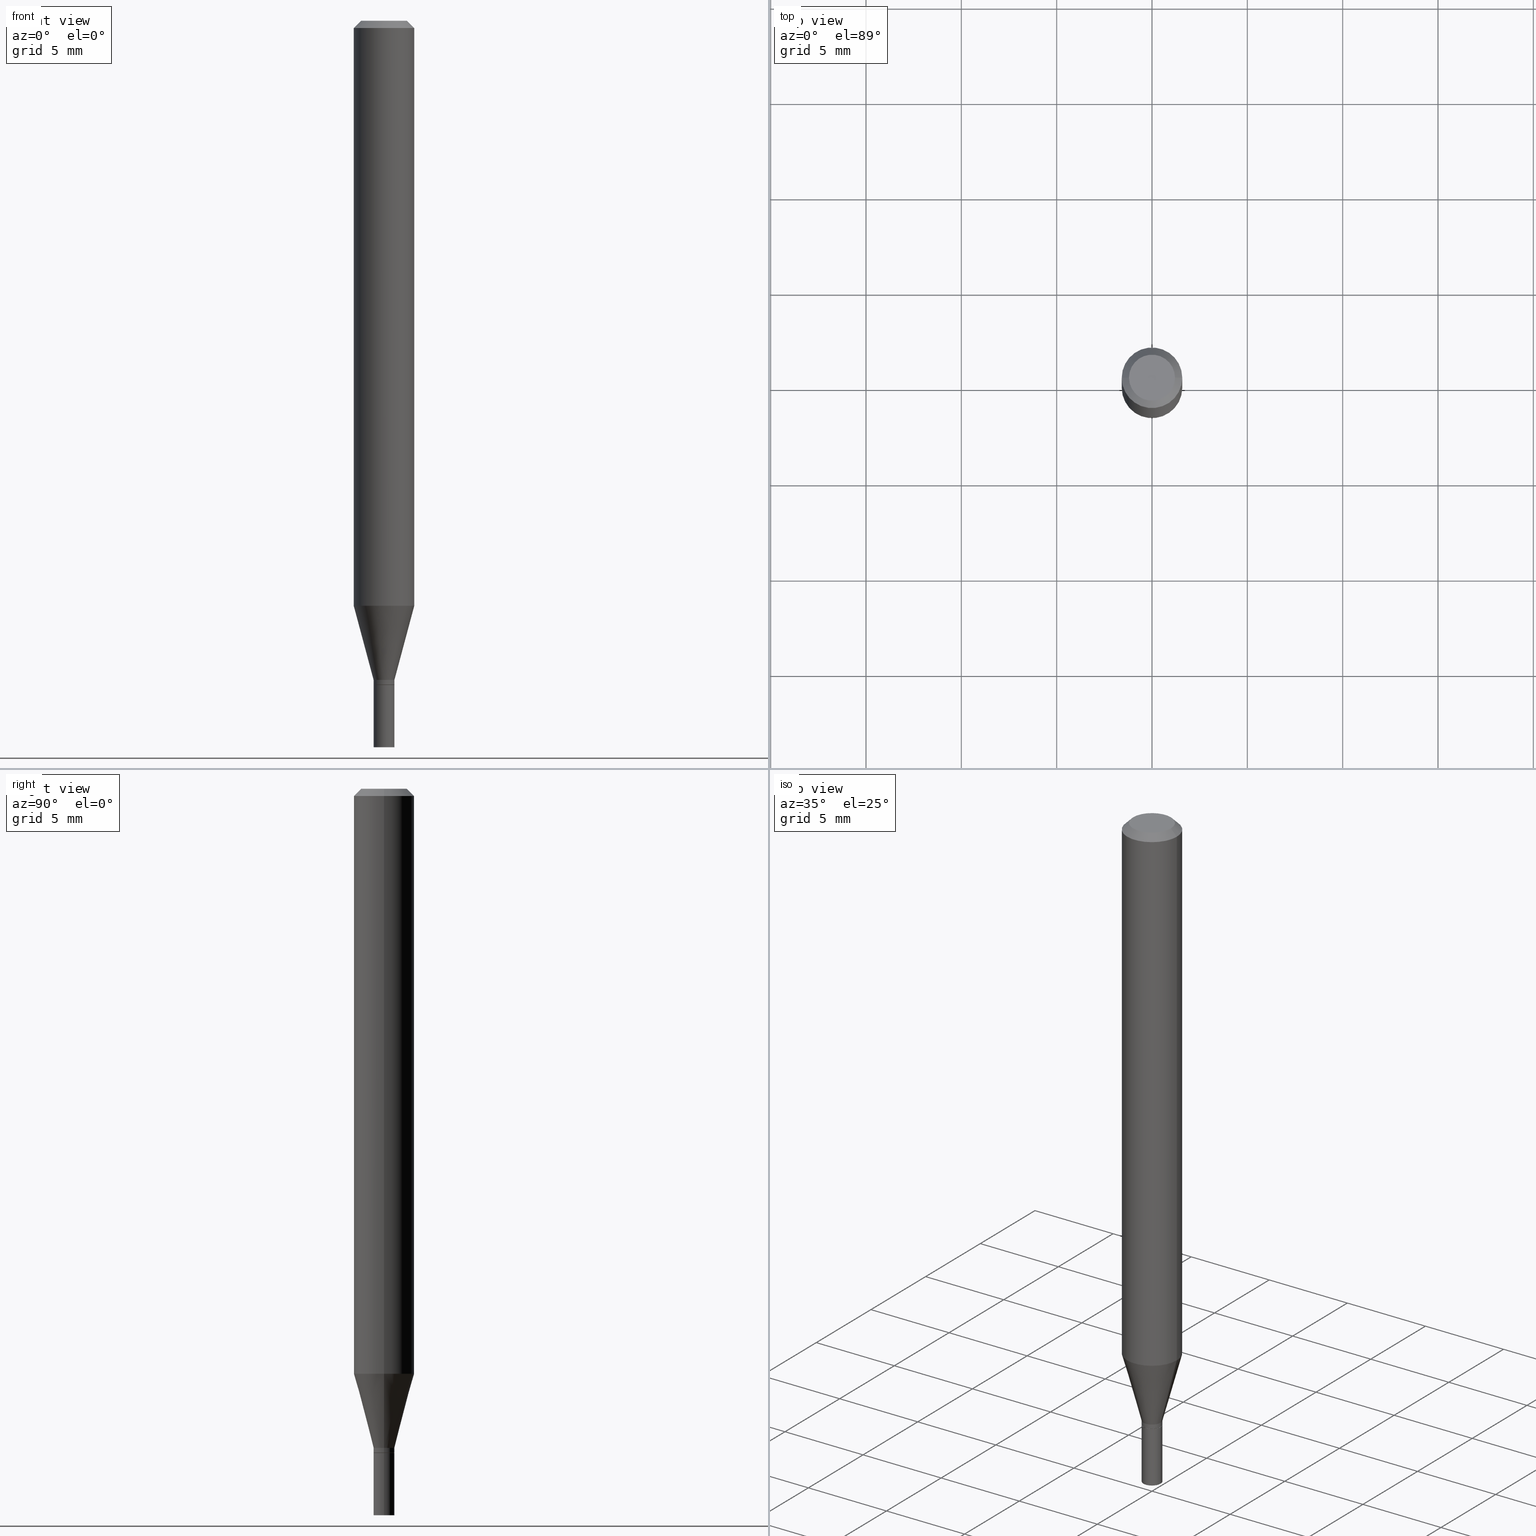
[diagram: canonical four-view strip — front | top / right | iso, engineering-drawing reading convention]
A machine part, canonical four-view strip (front | top / right | iso — engineering-drawing reading convention). The complete STEP part file that produces these views, byte-faithful:
ISO-10303-21;
HEADER;
FILE_DESCRIPTION (( 'STEP AP203' ),
    '1' );
FILE_NAME ('00481.STEP',
    '2024-03-19T21:19:58',
    ( '' ),
    ( '' ),
    'SwSTEP 2.0',
    'SolidWorks 2023',
    '' );
FILE_SCHEMA (( 'CONFIG_CONTROL_DESIGN' ));
ENDSEC;

DATA;
#1 = ORIENTED_EDGE ( 'NONE', *, *, #17, .F. ) ;
#2 = ORIENTED_EDGE ( 'NONE', *, *, #311, .F. ) ;
#3 = FACE_OUTER_BOUND ( 'NONE', #194, .T. ) ;
#4 = AXIS2_PLACEMENT_3D ( 'NONE', #453, #319, #150 ) ;
#5 = APPROVAL_PERSON_ORGANIZATION ( #126, #353, #408 ) ;
#6 = COORDINATED_UNIVERSAL_TIME_OFFSET ( 5, 0, .BEHIND. ) ;
#7 = EDGE_LOOP ( 'NONE', ( #34, #1, #221, #158 ) ) ;
#8 = PRODUCT_DEFINITION ( 'UNKNOWN', '', #239, #179 ) ;
#9 = PLANE ( 'NONE',  #419 ) ;
#10 = ORIENTED_EDGE ( 'NONE', *, *, #109, .T. ) ;
#11 = CARTESIAN_POINT ( 'NONE',  ( 2.954091878064654281E-29, -4.217660286405631739E-15, -1.207985916889676270 ) ) ;
#12 = APPROVAL_STATUS ( 'not_yet_approved' ) ;
#13 = AXIS2_PLACEMENT_3D ( 'NONE', #462, #424, #144 ) ;
#14 = VERTEX_POINT ( 'NONE', #312 ) ;
#15 = FACE_OUTER_BOUND ( 'NONE', #334, .T. ) ;
#16 = DIRECTION ( 'NONE',  ( -0.7071067811865522357, 2.468850131082306364E-15, -0.7071067811865427988 ) ) ;
#17 = EDGE_CURVE ( 'NONE', #92, #156, #153, .T. ) ;
#18 = DIRECTION ( 'NONE',  ( -2.445468806185136597E-29, 3.491481338843145583E-15, 1.000000000000000000 ) ) ;
#19 = DIRECTION ( 'NONE',  ( -0.7071067811865656694, 7.493145998870420424E-15, 0.7071067811865294761 ) ) ;
#20 = LINE ( 'NONE', #168, #44 ) ;
#21 = LINE ( 'NONE', #295, #141 ) ;
#22 = CC_DESIGN_APPROVAL ( #401, ( #246 ) ) ;
#23 = CARTESIAN_POINT ( 'NONE',  ( 0.06249999999999999306, -4.654095453761023408E-15, -1.207985916889676270 ) ) ;
#24 = APPROVAL_STATUS ( 'not_yet_approved' ) ;
#25 = FACE_OUTER_BOUND ( 'NONE', #123, .T. ) ;
#26 = ADVANCED_FACE ( 'NONE', ( #240 ), #99, .T. ) ;
#27 = VECTOR ( 'NONE', #318, 39.37007874015748143 ) ;
#28 = VECTOR ( 'NONE', #306, 39.37007874015748143 ) ;
#29 = CARTESIAN_POINT ( 'NONE',  ( 0.02150000000000000175, -5.387355705834973006E-15, -1.500000000000000222 ) ) ;
#30 = ORIENTED_EDGE ( 'NONE', *, *, #191, .F. ) ;
#31 = MECHANICAL_CONTEXT ( 'NONE', #105, 'mechanical' ) ;
#32 = DIRECTION ( 'NONE',  ( -1.000000000000000000, 6.982962677686266711E-15, 0.000000000000000000 ) ) ;
#33 = ORIENTED_EDGE ( 'NONE', *, *, #46, .T. ) ;
#34 = ORIENTED_EDGE ( 'NONE', *, *, #303, .F. ) ;
#35 = CALENDAR_DATE ( 2024, 19, 3 ) ;
#36 = AXIS2_PLACEMENT_3D ( 'NONE', #299, #444, #130 ) ;
#37 = CARTESIAN_POINT ( 'NONE',  ( 3.668203209277705088E-31, -5.237222008264718399E-17, -0.01499999999999999944 ) ) ;
#38 = DIRECTION ( 'NONE',  ( -2.445468806185136597E-29, 3.491481338843145583E-15, 1.000000000000000000 ) ) ;
#39 = DIRECTION ( 'NONE',  ( 1.000000000000000000, -6.982962677686265922E-15, 4.876176775795935793E-29 ) ) ;
#40 = EDGE_LOOP ( 'NONE', ( #430, #10, #53, #263 ) ) ;
#41 = DIRECTION ( 'NONE',  ( 2.445468806185136597E-29, -3.491481338843145583E-15, -1.000000000000000000 ) ) ;
#42 = ORIENTED_EDGE ( 'NONE', *, *, #187, .T. ) ;
#43 = EDGE_CURVE ( 'NONE', #449, #234, #434, .T. ) ;
#44 = VECTOR ( 'NONE', #19, 39.37007874015748143 ) ;
#45 = LOCAL_TIME ( 17, 19, 58.00000000000000000, #356 ) ;
#46 = EDGE_CURVE ( 'NONE', #75, #450, #421, .T. ) ;
#47 = FACE_OUTER_BOUND ( 'NONE', #119, .T. ) ;
#48 = CARTESIAN_POINT ( 'NONE',  ( 3.576687321579069994E-29, -5.368277968210015545E-15, -1.500000000000000222 ) ) ;
#49 = VERTEX_POINT ( 'NONE', #427 ) ;
#50 = LINE ( 'NONE', #242, #28 ) ;
#51 = VECTOR ( 'NONE', #386, 39.37007874015748143 ) ;
#52 = APPROVAL_PERSON_ORGANIZATION ( #352, #329, #57 ) ;
#53 = ORIENTED_EDGE ( 'NONE', *, *, #350, .T. ) ;
#54 = DIRECTION ( 'NONE',  ( -1.000000000000000000, 6.982962677686265922E-15, -4.876176775795935793E-29 ) ) ;
#55 = MANIFOLD_SOLID_BREP ( 'Body-Move/Copy2[1]', #231 ) ;
#56 = DIRECTION ( 'NONE',  ( -2.445468806185136597E-29, 3.491481338843145583E-15, 1.000000000000000000 ) ) ;
#57 = APPROVAL_ROLE ( '' ) ;
#58 = LINE ( 'NONE', #182, #27 ) ;
#59 = AXIS2_PLACEMENT_3D ( 'NONE', #364, #38, #325 ) ;
#60 = CARTESIAN_POINT ( 'NONE',  ( 0.06250000000000000000, -4.811533449433679005E-16, -0.01499999999999999944 ) ) ;
#61 =( CONVERSION_BASED_UNIT ( 'INCH', #388 ) LENGTH_UNIT ( ) NAMED_UNIT ( #307 ) );
#62 = DIRECTION ( 'NONE',  ( 1.000000000000000000, -6.982962677686287221E-15, 0.000000000000000000 ) ) ;
#63 = FACE_OUTER_BOUND ( 'NONE', #248, .T. ) ;
#64 = DIRECTION ( 'NONE',  ( -2.445468806185136597E-29, 3.491481338843145583E-15, 1.000000000000000000 ) ) ;
#65 = ORIENTED_EDGE ( 'NONE', *, *, #46, .F. ) ;
#66 = AXIS2_PLACEMENT_3D ( 'NONE', #278, #250, #417 ) ;
#67 = ORIENTED_EDGE ( 'NONE', *, *, #104, .T. ) ;
#68 = APPROVAL_ROLE ( '' ) ;
#69 = ADVANCED_FACE ( 'NONE', ( #422 ), #351, .T. ) ;
#70 = ORIENTED_EDGE ( 'NONE', *, *, #354, .T. ) ;
#71 = AXIS2_PLACEMENT_3D ( 'NONE', #431, #64, #102 ) ;
#72 = CYLINDRICAL_SURFACE ( 'NONE', #59, 0.06250000000000000000 ) ;
#73 = ORGANIZATION ( 'UNSPECIFIED', 'UNSPECIFIED', '' ) ;
#74 = VERTEX_POINT ( 'NONE', #355 ) ;
#75 = VERTEX_POINT ( 'NONE', #29 ) ;
#76 = DIRECTION ( 'NONE',  ( -2.445468806185136597E-29, 3.491481338843145583E-15, 1.000000000000000000 ) ) ;
#77 = ADVANCED_FACE ( 'NONE', ( #180 ), #164, .T. ) ;
#78 = ADVANCED_FACE ( 'NONE', ( #25 ), #243, .T. ) ;
#79 = CARTESIAN_POINT ( 'NONE',  ( 3.352737733279822651E-29, -4.786820915553953690E-15, -1.371000000000000218 ) ) ;
#80 = AXIS2_PLACEMENT_3D ( 'NONE', #317, #411, #127 ) ;
#81 = LOCAL_TIME ( 17, 19, 58.00000000000000000, #403 ) ;
#82 = FACE_OUTER_BOUND ( 'NONE', #136, .T. ) ;
#83 = VERTEX_POINT ( 'NONE', #147 ) ;
#84 = CALENDAR_DATE ( 2024, 19, 3 ) ;
#85 = DIRECTION ( 'NONE',  ( -2.445468806185136597E-29, 3.491481338843145583E-15, 1.000000000000000000 ) ) ;
#86 = CARTESIAN_POINT ( 'NONE',  ( 3.351514998876730410E-29, -4.785075174884532186E-15, -1.370500000000000274 ) ) ;
#87 = DIRECTION ( 'NONE',  ( 2.438088387897960049E-29, -3.491481338843145188E-15, -1.000000000000000000 ) ) ;
#88 = CARTESIAN_POINT ( 'NONE',  ( 0.02099999999999999784, -4.933463131785365512E-15, -1.371000000000000218 ) ) ;
#89 = APPROVAL_PERSON_ORGANIZATION ( #305, #401, #68 ) ;
#90 = DIRECTION ( 'NONE',  ( 1.000000000000000000, -6.982962677686287221E-15, 0.000000000000000000 ) ) ;
#91 = DIRECTION ( 'NONE',  ( 1.000000000000000000, -6.982962677686265922E-15, 4.876176775795935793E-29 ) ) ;
#92 = VERTEX_POINT ( 'NONE', #216 ) ;
#93 = EDGE_CURVE ( 'NONE', #83, #74, #404, .T. ) ;
#94 = ORIENTED_EDGE ( 'NONE', *, *, #155, .F. ) ;
#95 = DIRECTION ( 'NONE',  ( 1.000000000000000000, -6.982962677686267499E-15, 4.852736867747366768E-29 ) ) ;
#96 = AXIS2_PLACEMENT_3D ( 'NONE', #268, #132, #300 ) ;
#97 = ORIENTED_EDGE ( 'NONE', *, *, #322, .T. ) ;
#98 = VECTOR ( 'NONE', #100, 39.37007874015747433 ) ;
#99 = CYLINDRICAL_SURFACE ( 'NONE', #71, 0.02149999999999992889 ) ;
#100 = DIRECTION ( 'NONE',  ( -0.2588190451025214611, 5.211531920934551042E-15, 0.9659258262890682012 ) ) ;
#101 = ORIENTED_EDGE ( 'NONE', *, *, #457, .T. ) ;
#102 = DIRECTION ( 'NONE',  ( 1.000000000000000000, -6.982962677686266711E-15, 4.876176775795934672E-29 ) ) ;
#103 =( NAMED_UNIT ( * ) SI_UNIT ( $, .STERADIAN. ) SOLID_ANGLE_UNIT ( ) );
#104 = EDGE_CURVE ( 'NONE', #282, #49, #370, .T. ) ;
#105 = APPLICATION_CONTEXT ( 'configuration controlled 3d designs of mechanical parts and assemblies' ) ;
#106 = AXIS2_PLACEMENT_3D ( 'NONE', #342, #18, #62 ) ;
#107 = DATE_AND_TIME ( #181, #45 ) ;
#108 = ORIENTED_EDGE ( 'NONE', *, *, #229, .F. ) ;
#109 = EDGE_CURVE ( 'NONE', #275, #323, #338, .T. ) ;
#110 = DATE_AND_TIME ( #35, #357 ) ;
#111 = AXIS2_PLACEMENT_3D ( 'NONE', #452, #244, #210 ) ;
#112 = DIRECTION ( 'NONE',  ( 1.000000000000000000, -6.982962677686262766E-15, 0.000000000000000000 ) ) ;
#113 = ADVANCED_FACE ( 'NONE', ( #15 ), #128, .T. ) ;
#114 = PLANE ( 'NONE',  #426 ) ;
#115 = ADVANCED_FACE ( 'NONE', ( #135 ), #133, .T. ) ;
#116 = CARTESIAN_POINT ( 'NONE',  ( 3.668203209277704895E-29, -5.237222008264718177E-15, -1.500000000000000222 ) ) ;
#117 = EDGE_LOOP ( 'NONE', ( #413, #369, #373, #186 ) ) ;
#118 = DIRECTION ( 'NONE',  ( -2.438088387897960049E-29, 3.491481338843145188E-15, 1.000000000000000000 ) ) ;
#119 = EDGE_LOOP ( 'NONE', ( #291, #415 ) ) ;
#120 = ORIENTED_EDGE ( 'NONE', *, *, #187, .F. ) ;
#121 = CIRCLE ( 'NONE', #36, 0.02150000000000000175 ) ;
#122 = PLANE ( 'NONE',  #451 ) ;
#123 = EDGE_LOOP ( 'NONE', ( #160, #398, #30, #120 ) ) ;
#124 = DIRECTION ( 'NONE',  ( 1.000000000000000000, -6.982962677686265922E-15, 4.876176775795935232E-29 ) ) ;
#125 = PERSON ( 'UNSPECIFIED', 'UNSPECIFIED', 'UNSPECIFIED', ('UNSPECIFIED'), ('UNSPECIFIED'), ('UNSPECIFIED') ) ;
#126 = PERSON_AND_ORGANIZATION ( #125, #73 ) ;
#127 = DIRECTION ( 'NONE',  ( -1.000000000000000000, 6.982962677686266711E-15, 0.000000000000000000 ) ) ;
#128 = CYLINDRICAL_SURFACE ( 'NONE', #301, 0.02150000000000000175 ) ;
#129 = CARTESIAN_POINT ( 'NONE',  ( 1.501336975702882323E-16, 0.02149999999999521391, -1.371000000000000218 ) ) ;
#130 = DIRECTION ( 'NONE',  ( 1.000000000000000000, -6.982962677686265133E-15, 0.000000000000000000 ) ) ;
#131 = ADVANCED_FACE ( 'NONE', ( #47 ), #122, .F. ) ;
#132 = DIRECTION ( 'NONE',  ( -2.445468806185136597E-29, 3.491481338843145583E-15, 1.000000000000000000 ) ) ;
#133 = CONICAL_SURFACE ( 'NONE', #260, 0.02099999999999999784, 0.7853981633974739252 ) ;
#134 = AXIS2_PLACEMENT_3D ( 'NONE', #79, #292, #436 ) ;
#135 = FACE_OUTER_BOUND ( 'NONE', #416, .T. ) ;
#136 = EDGE_LOOP ( 'NONE', ( #264, #360 ) ) ;
#137 =( LENGTH_UNIT ( ) NAMED_UNIT ( * ) SI_UNIT ( $, .METRE. ) );
#138 = CC_DESIGN_PERSON_AND_ORGANIZATION_ASSIGNMENT ( #359, #184, ( #246 ) ) ;
#139 = PERSON_AND_ORGANIZATION_ROLE ( 'design_owner' ) ;
#140 = DIRECTION ( 'NONE',  ( 0.2588190451025214611, 1.565188264969621573E-15, 0.9659258262890682012 ) ) ;
#141 = VECTOR ( 'NONE', #140, 39.37007874015747433 ) ;
#142 = CIRCLE ( 'NONE', #396, 0.02150000000000000175 ) ;
#143 = CC_DESIGN_DATE_AND_TIME_ASSIGNMENT ( #199, #337, ( #8 ) ) ;
#144 = DIRECTION ( 'NONE',  ( 1.000000000000000000, -6.982962677686287221E-15, 0.000000000000000000 ) ) ;
#145 =( NAMED_UNIT ( * ) PLANE_ANGLE_UNIT ( ) SI_UNIT ( $, .RADIAN. ) );
#146 = LINE ( 'NONE', #219, #435 ) ;
#147 = CARTESIAN_POINT ( 'NONE',  ( -0.06250000000000000000, -1.690927043394076990E-15, -0.01499999999999999944 ) ) ;
#148 = DIRECTION ( 'NONE',  ( 1.000000000000000000, -6.982962677686267499E-15, 4.852736867747366768E-29 ) ) ;
#149 = DIRECTION ( 'NONE',  ( -2.445468806185136597E-29, 3.491481338843145583E-15, 1.000000000000000000 ) ) ;
#150 = DIRECTION ( 'NONE',  ( 1.000000000000000000, -6.982962677686266711E-15, 4.876176775795934672E-29 ) ) ;
#151 = DIRECTION ( 'NONE',  ( -2.445468806185136877E-29, 3.491481338843145188E-15, 1.000000000000000000 ) ) ;
#152 = ORIENTED_EDGE ( 'NONE', *, *, #200, .F. ) ;
#153 = CIRCLE ( 'NONE', #279, 0.04749999999999999362 ) ;
#154 = ORIENTED_EDGE ( 'NONE', *, *, #380, .F. ) ;
#155 = EDGE_CURVE ( 'NONE', #14, #217, #321, .T. ) ;
#156 = VERTEX_POINT ( 'NONE', #379 ) ;
#157 = EDGE_LOOP ( 'NONE', ( #285, #192 ) ) ;
#158 = ORIENTED_EDGE ( 'NONE', *, *, #93, .T. ) ;
#159 = CIRCLE ( 'NONE', #448, 0.06250000000000000000 ) ;
#160 = ORIENTED_EDGE ( 'NONE', *, *, #155, .T. ) ;
#161 = CARTESIAN_POINT ( 'NONE',  ( -0.06249999999999999306, -3.773571076555568334E-15, -1.207985916889676270 ) ) ;
#162 = APPROVAL_STATUS ( 'not_yet_approved' ) ;
#163 = ORIENTED_EDGE ( 'NONE', *, *, #350, .F. ) ;
#164 = CONICAL_SURFACE ( 'NONE', #80, 0.06250000000000000000, 0.7853981633974549403 ) ;
#165 = VECTOR ( 'NONE', #207, 39.37007874015748143 ) ;
#166 = EDGE_CURVE ( 'NONE', #234, #449, #245, .T. ) ;
#167 = FACE_OUTER_BOUND ( 'NONE', #270, .T. ) ;
#168 = CARTESIAN_POINT ( 'NONE',  ( -0.02099999999999999784, -4.637606941044332518E-15, -1.371000000000000218 ) ) ;
#169 = ORIENTED_EDGE ( 'NONE', *, *, #290, .F. ) ;
#170 = FACE_OUTER_BOUND ( 'NONE', #223, .T. ) ;
#171 = VECTOR ( 'NONE', #409, 39.37007874015748143 ) ;
#172 = ADVANCED_FACE ( 'NONE', ( #63 ), #374, .T. ) ;
#173 = DIRECTION ( 'NONE',  ( 1.000000000000000000, -6.982962677686287221E-15, 0.000000000000000000 ) ) ;
#174 = LINE ( 'NONE', #381, #165 ) ;
#175 = UNCERTAINTY_MEASURE_WITH_UNIT (LENGTH_MEASURE( 1.000000000000000082E-05 ), #61, 'distance_accuracy_value', 'NONE');
#176 = EDGE_CURVE ( 'NONE', #275, #83, #58, .T. ) ;
#177 = APPROVAL_DATE_TIME ( #308, #353 ) ;
#178 = CIRCLE ( 'NONE', #446, 0.02149999999999992195 ) ;
#179 = DESIGN_CONTEXT ( 'detailed design', #432, 'design' ) ;
#180 = FACE_OUTER_BOUND ( 'NONE', #7, .T. ) ;
#181 = CALENDAR_DATE ( 2024, 19, 3 ) ;
#182 = CARTESIAN_POINT ( 'NONE',  ( -0.06250000000000000000, 4.440892098500626162E-16, -3.074334431409316114E-30 ) ) ;
#183 = ADVANCED_FACE ( 'NONE', ( #255 ), #238, .T. ) ;
#184 = PERSON_AND_ORGANIZATION_ROLE ( 'classification_officer' ) ;
#185 = LINE ( 'NONE', #320, #204 ) ;
#186 = ORIENTED_EDGE ( 'NONE', *, *, #214, .F. ) ;
#187 = EDGE_CURVE ( 'NONE', #14, #49, #185, .T. ) ;
#188 = EDGE_CURVE ( 'NONE', #217, #14, #178, .T. ) ;
#189 = CLOSED_SHELL ( 'NONE', ( #78, #347, #183, #362, #215, #172, #69, #77, #131, #232, #115, #26 ) ) ;
#190 = LOCAL_TIME ( 17, 19, 58.00000000000000000, #230 ) ;
#191 = EDGE_CURVE ( 'NONE', #49, #282, #284, .T. ) ;
#192 = ORIENTED_EDGE ( 'NONE', *, *, #43, .F. ) ;
#193 = CARTESIAN_POINT ( 'NONE',  ( -0.02150000000000000175, -4.859254773720913469E-15, -1.500000000000000222 ) ) ;
#194 = EDGE_LOOP ( 'NONE', ( #385, #294, #33, #455 ) ) ;
#195 = AXIS2_PLACEMENT_3D ( 'NONE', #37, #41, #32 ) ;
#196 = AXIS2_PLACEMENT_3D ( 'NONE', #237, #384, #335 ) ;
#197 = CALENDAR_DATE ( 2024, 19, 3 ) ;
#198 = DIRECTION ( 'NONE',  ( -2.438088387897960049E-29, 3.491481338843145188E-15, 1.000000000000000000 ) ) ;
#199 = DATE_AND_TIME ( #84, #212 ) ;
#200 = EDGE_CURVE ( 'NONE', #449, #217, #20, .T. ) ;
#201 = FACE_OUTER_BOUND ( 'NONE', #328, .T. ) ;
#202 = EDGE_CURVE ( 'NONE', #450, #365, #121, .T. ) ;
#203 = ORIENTED_EDGE ( 'NONE', *, *, #376, .F. ) ;
#204 = VECTOR ( 'NONE', #151, 39.37007874015748143 ) ;
#205 = CARTESIAN_POINT ( 'NONE',  ( 0.02150000000000000175, -1.501336975702547303E-16, 1.048378006796126202E-30 ) ) ;
#206 = DIRECTION ( 'NONE',  ( -2.445468806185136597E-29, 3.491481338843145583E-15, 1.000000000000000000 ) ) ;
#207 = DIRECTION ( 'NONE',  ( -2.445468806185136877E-29, 3.491481338843145188E-15, 1.000000000000000000 ) ) ;
#208 = EDGE_LOOP ( 'NONE', ( #213, #259, #154, #163 ) ) ;
#209 = DIRECTION ( 'NONE',  ( 0.000000000000000000, 0.000000000000000000, 1.000000000000000000 ) ) ;
#210 = DIRECTION ( 'NONE',  ( 1.000000000000000000, -6.982962677686266711E-15, 4.876176775795935793E-29 ) ) ;
#211 = MANIFOLD_SOLID_BREP ( 'Body-Move/Copy2[2]', #189 ) ;
#212 = LOCAL_TIME ( 17, 19, 58.00000000000000000, #6 ) ;
#213 = ORIENTED_EDGE ( 'NONE', *, *, #376, .T. ) ;
#214 = EDGE_CURVE ( 'NONE', #92, #83, #233, .T. ) ;
#215 = ADVANCED_FACE ( 'NONE', ( #170 ), #383, .T. ) ;
#216 = CARTESIAN_POINT ( 'NONE',  ( -0.04749999999999999362, 3.578768372314206562E-16, -1.989643822619551895E-16 ) ) ;
#217 = VERTEX_POINT ( 'NONE', #456 ) ;
#218 = AXIS2_PLACEMENT_3D ( 'NONE', #304, #390, #173 ) ;
#219 = CARTESIAN_POINT ( 'NONE',  ( 0.06250000000000000000, -4.364351673553916694E-16, 3.047610484872459871E-30 ) ) ;
#220 = CC_DESIGN_PERSON_AND_ORGANIZATION_ASSIGNMENT ( #241, #139, ( #277 ) ) ;
#221 = ORIENTED_EDGE ( 'NONE', *, *, #214, .T. ) ;
#222 = CARTESIAN_POINT ( 'NONE',  ( -0.02150000000000000175, -4.859254773720913469E-15, -1.371000000000000218 ) ) ;
#223 = EDGE_LOOP ( 'NONE', ( #366, #101, #203, #169 ) ) ;
#224 = DIRECTION ( 'NONE',  ( 1.000000000000000000, -6.982962677686265133E-15, 0.000000000000000000 ) ) ;
#225 = VECTOR ( 'NONE', #267, 39.37007874015748143 ) ;
#226 = CC_DESIGN_APPROVAL ( #329, ( #8 ) ) ;
#227 = FACE_OUTER_BOUND ( 'NONE', #157, .T. ) ;
#228 = LINE ( 'NONE', #88, #171 ) ;
#229 = EDGE_CURVE ( 'NONE', #234, #14, #228, .T. ) ;
#230 = COORDINATED_UNIVERSAL_TIME_OFFSET ( 5, 0, .BEHIND. ) ;
#231 = CLOSED_SHELL ( 'NONE', ( #113, #288, #389, #330 ) ) ;
#232 = ADVANCED_FACE ( 'NONE', ( #227 ), #114, .F. ) ;
#233 = LINE ( 'NONE', #378, #399 ) ;
#234 = VERTEX_POINT ( 'NONE', #336 ) ;
#235 = LINE ( 'NONE', #60, #225 ) ;
#236 = ORIENTED_EDGE ( 'NONE', *, *, #200, .T. ) ;
#237 = CARTESIAN_POINT ( 'NONE',  ( 3.328283045217970545E-29, -4.751906102165520463E-15, -1.360999999999999988 ) ) ;
#238 = CONICAL_SURFACE ( 'NONE', #195, 0.06250000000000000000, 0.7853981633974549403 ) ;
#239 = PRODUCT_DEFINITION_FORMATION_WITH_SPECIFIED_SOURCE ( 'ANY', '', #277, .NOT_KNOWN. ) ;
#240 = FACE_OUTER_BOUND ( 'NONE', #281, .T. ) ;
#241 = PERSON_AND_ORGANIZATION ( #125, #73 ) ;
#242 = CARTESIAN_POINT ( 'NONE',  ( -0.02150000000000000175, 1.527666881884215524E-16, -1.057571044404804700E-30 ) ) ;
#243 = CYLINDRICAL_SURFACE ( 'NONE', #4, 0.02149999999999992889 ) ;
#244 = DIRECTION ( 'NONE',  ( -2.445468806185136597E-29, 3.491481338843145583E-15, 1.000000000000000000 ) ) ;
#245 = CIRCLE ( 'NONE', #218, 0.02099999999999999784 ) ;
#246 = SECURITY_CLASSIFICATION ( '', '', #428 ) ;
#247 = APPLICATION_PROTOCOL_DEFINITION ( 'international standard', 'config_control_design', 1994, #105 ) ;
#248 = EDGE_LOOP ( 'NONE', ( #326, #67, #272, #461 ) ) ;
#249 = FACE_OUTER_BOUND ( 'NONE', #208, .T. ) ;
#250 = DIRECTION ( 'NONE',  ( -2.445468806185136597E-29, 3.491481338843145583E-15, 1.000000000000000000 ) ) ;
#251 = EDGE_CURVE ( 'NONE', #75, #382, #293, .T. ) ;
#252 = AXIS2_PLACEMENT_3D ( 'NONE', #257, #405, #124 ) ;
#253 = DIRECTION ( 'NONE',  ( -2.445468806185136597E-29, 3.491481338843145583E-15, 1.000000000000000000 ) ) ;
#254 = CARTESIAN_POINT ( 'NONE',  ( 3.352737733279822651E-29, -4.786820915553953690E-15, -1.371000000000000218 ) ) ;
#255 = FACE_OUTER_BOUND ( 'NONE', #117, .T. ) ;
#256 = ORIENTED_EDGE ( 'NONE', *, *, #202, .T. ) ;
#257 = CARTESIAN_POINT ( 'NONE',  ( 0.000000000000000000, 0.000000000000000000, 0.000000000000000000 ) ) ;
#258 = CARTESIAN_POINT ( 'NONE',  ( 3.351514998876730410E-29, -4.785075174884532186E-15, -1.370500000000000274 ) ) ;
#259 = ORIENTED_EDGE ( 'NONE', *, *, #176, .T. ) ;
#260 = AXIS2_PLACEMENT_3D ( 'NONE', #269, #441, #90 ) ;
#261 = AXIS2_PLACEMENT_3D ( 'NONE', #418, #206, #95 ) ;
#262 = ORIENTED_EDGE ( 'NONE', *, *, #188, .T. ) ;
#263 = ORIENTED_EDGE ( 'NONE', *, *, #93, .F. ) ;
#264 = ORIENTED_EDGE ( 'NONE', *, *, #251, .F. ) ;
#265 = CC_DESIGN_PERSON_AND_ORGANIZATION_ASSIGNMENT ( #423, #458, ( #239 ) ) ;
#266 = PERSON_AND_ORGANIZATION ( #125, #73 ) ;
#267 = DIRECTION ( 'NONE',  ( 0.7071067811865522357, -7.319954787623271823E-15, -0.7071067811865427988 ) ) ;
#268 = CARTESIAN_POINT ( 'NONE',  ( 3.328283045217970545E-29, -4.751906102165520463E-15, -1.360999999999999988 ) ) ;
#269 = CARTESIAN_POINT ( 'NONE',  ( 3.352737733279822651E-29, -4.786820915553953690E-15, -1.371000000000000218 ) ) ;
#270 = EDGE_LOOP ( 'NONE', ( #256, #70 ) ) ;
#271 = CARTESIAN_POINT ( 'NONE',  ( -0.02149999999999992889, -4.599139413977099971E-15, -1.360999999999999988 ) ) ;
#272 = ORIENTED_EDGE ( 'NONE', *, *, #290, .T. ) ;
#273 = LINE ( 'NONE', #271, #98 ) ;
#274 = CIRCLE ( 'NONE', #400, 0.06250000000000000000 ) ;
#275 = VERTEX_POINT ( 'NONE', #161 ) ;
#276 = ORIENTED_EDGE ( 'NONE', *, *, #202, .F. ) ;
#277 = PRODUCT ( '00481', '00481', '', ( #31 ) ) ;
#278 = CARTESIAN_POINT ( 'NONE',  ( 3.668203209277705088E-31, -5.237222008264718399E-17, -0.01499999999999999944 ) ) ;
#279 = AXIS2_PLACEMENT_3D ( 'NONE', #392, #149, #148 ) ;
#280 = CIRCLE ( 'NONE', #134, 0.02150000000000000175 ) ;
#281 = EDGE_LOOP ( 'NONE', ( #2, #262, #42, #343 ) ) ;
#282 = VERTEX_POINT ( 'NONE', #372 ) ;
#283 = CARTESIAN_POINT ( 'NONE',  ( 2.954091878064654281E-29, -4.217660286405631739E-15, -1.207985916889676270 ) ) ;
#284 = CIRCLE ( 'NONE', #96, 0.02149999999999992889 ) ;
#285 = ORIENTED_EDGE ( 'NONE', *, *, #166, .F. ) ;
#286 = CONICAL_SURFACE ( 'NONE', #106, 0.02099999999999999784, 0.7853981633974739252 ) ;
#287 = CYLINDRICAL_SURFACE ( 'NONE', #252, 0.02150000000000000175 ) ;
#288 = ADVANCED_FACE ( 'NONE', ( #82 ), #9, .F. ) ;
#289 = CC_DESIGN_DATE_AND_TIME_ASSIGNMENT ( #107, #302, ( #246 ) ) ;
#290 = EDGE_CURVE ( 'NONE', #49, #323, #21, .T. ) ;
#291 = ORIENTED_EDGE ( 'NONE', *, *, #17, .T. ) ;
#292 = DIRECTION ( 'NONE',  ( -2.445468806185136597E-29, 3.491481338843145583E-15, 1.000000000000000000 ) ) ;
#293 = CIRCLE ( 'NONE', #363, 0.02150000000000000175 ) ;
#294 = ORIENTED_EDGE ( 'NONE', *, *, #412, .T. ) ;
#295 = CARTESIAN_POINT ( 'NONE',  ( 0.02149999999999992889, -4.902039799735775292E-15, -1.360999999999999988 ) ) ;
#296 = CARTESIAN_POINT ( 'NONE',  ( 3.328283045217970545E-29, -4.751906102165520463E-15, -1.360999999999999988 ) ) ;
#297 = DIRECTION ( 'NONE',  ( -1.000000000000000000, 6.982962677686265922E-15, -4.876176775795935793E-29 ) ) ;
#298 = DIRECTION ( 'NONE',  ( -2.445468806185136597E-29, 3.491481338843145583E-15, 1.000000000000000000 ) ) ;
#299 = CARTESIAN_POINT ( 'NONE',  ( 3.352737733279822651E-29, -4.786820915553953690E-15, -1.371000000000000218 ) ) ;
#300 = DIRECTION ( 'NONE',  ( 1.000000000000000000, -6.982962677686288799E-15, 0.000000000000000000 ) ) ;
#301 = AXIS2_PLACEMENT_3D ( 'NONE', #447, #298, #371 ) ;
#302 = DATE_TIME_ROLE ( 'classification_date' ) ;
#303 = EDGE_CURVE ( 'NONE', #156, #74, #235, .T. ) ;
#304 = CARTESIAN_POINT ( 'NONE',  ( 3.352737733279822651E-29, -4.786820915553953690E-15, -1.371000000000000218 ) ) ;
#305 = PERSON_AND_ORGANIZATION ( #125, #73 ) ;
#306 = DIRECTION ( 'NONE',  ( -2.445468806185136877E-29, 3.491481338843145188E-15, 1.000000000000000000 ) ) ;
#307 = DIMENSIONAL_EXPONENTS ( 1.000000000000000000, 0.000000000000000000, 0.000000000000000000, 0.000000000000000000, 0.000000000000000000, 0.000000000000000000, 0.000000000000000000 ) ;
#308 = DATE_AND_TIME ( #387, #190 ) ;
#309 = CARTESIAN_POINT ( 'NONE',  ( 0.02150000000000000175, -4.936954613124208519E-15, -1.371000000000000218 ) ) ;
#310 = ADVANCED_BREP_SHAPE_REPRESENTATION ( '00481', ( #55, #211, #420 ), #410 ) ;
#311 = EDGE_CURVE ( 'NONE', #217, #282, #174, .T. ) ;
#312 = CARTESIAN_POINT ( 'NONE',  ( 0.02149999999999992195, -4.935208872454787015E-15, -1.370500000000000274 ) ) ;
#313 = PERSON_AND_ORGANIZATION_ROLE ( 'creator' ) ;
#314 = CARTESIAN_POINT ( 'NONE',  ( 3.328283045217970545E-29, -4.751906102165520463E-15, -1.360999999999999988 ) ) ;
#315 = ORIENTED_EDGE ( 'NONE', *, *, #229, .T. ) ;
#316 = DIRECTION ( 'NONE',  ( -2.445468806185136597E-29, 3.491481338843145583E-15, 1.000000000000000000 ) ) ;
#317 = CARTESIAN_POINT ( 'NONE',  ( 3.668203209277705088E-31, -5.237222008264718399E-17, -0.01499999999999999944 ) ) ;
#318 = DIRECTION ( 'NONE',  ( -2.445468806185136877E-29, 3.491481338843145188E-15, 1.000000000000000000 ) ) ;
#319 = DIRECTION ( 'NONE',  ( -2.445468806185136597E-29, 3.491481338843145583E-15, 1.000000000000000000 ) ) ;
#320 = CARTESIAN_POINT ( 'NONE',  ( 0.02149999999999992889, -1.501336975702542373E-16, 1.048378006796122524E-30 ) ) ;
#321 = CIRCLE ( 'NONE', #327, 0.02149999999999992195 ) ;
#322 = EDGE_CURVE ( 'NONE', #382, #365, #50, .T. ) ;
#323 = VERTEX_POINT ( 'NONE', #23 ) ;
#324 = APPROVAL_DATE_TIME ( #110, #401 ) ;
#325 = DIRECTION ( 'NONE',  ( 1.000000000000000000, -6.982962677686266711E-15, 4.876176775795935793E-29 ) ) ;
#326 = ORIENTED_EDGE ( 'NONE', *, *, #457, .F. ) ;
#327 = AXIS2_PLACEMENT_3D ( 'NONE', #86, #439, #358 ) ;
#328 = EDGE_LOOP ( 'NONE', ( #437, #236, #94, #108 ) ) ;
#329 = APPROVAL ( #24, 'UNSPECIFIED' ) ;
#330 = ADVANCED_FACE ( 'NONE', ( #167 ), #442, .F. ) ;
#331 = APPROVAL_DATE_TIME ( #406, #329 ) ;
#332 = PERSON_AND_ORGANIZATION_ROLE ( 'creator' ) ;
#333 = DIRECTION ( 'NONE',  ( 2.438088387897960049E-29, -3.491481338843145188E-15, -1.000000000000000000 ) ) ;
#334 = EDGE_LOOP ( 'NONE', ( #361, #97, #276, #65 ) ) ;
#335 = DIRECTION ( 'NONE',  ( 1.000000000000000000, -6.982962677686288799E-15, 0.000000000000000000 ) ) ;
#336 = CARTESIAN_POINT ( 'NONE',  ( 0.02099999999999999784, -4.933463131785365512E-15, -1.371000000000000218 ) ) ;
#337 = DATE_TIME_ROLE ( 'creation_date' ) ;
#338 = CIRCLE ( 'NONE', #344, 0.06250000000000000000 ) ;
#339 = CIRCLE ( 'NONE', #261, 0.04749999999999999362 ) ;
#340 = DIRECTION ( 'NONE',  ( 1.000000000000000000, -6.982962677686262766E-15, 0.000000000000000000 ) ) ;
#341 = CARTESIAN_POINT ( 'NONE',  ( 3.316907271900976096E-16, 0.04749999999999999362, -2.653275547260257586E-16 ) ) ;
#342 = CARTESIAN_POINT ( 'NONE',  ( 3.352737733279822651E-29, -4.786820915553953690E-15, -1.371000000000000218 ) ) ;
#343 = ORIENTED_EDGE ( 'NONE', *, *, #104, .F. ) ;
#344 = AXIS2_PLACEMENT_3D ( 'NONE', #11, #407, #340 ) ;
#345 = CC_DESIGN_SECURITY_CLASSIFICATION ( #246, ( #239 ) ) ;
#346 = CC_DESIGN_PERSON_AND_ORGANIZATION_ASSIGNMENT ( #266, #332, ( #8 ) ) ;
#347 = ADVANCED_FACE ( 'NONE', ( #201 ), #286, .T. ) ;
#348 = CARTESIAN_POINT ( 'NONE',  ( -0.02099999999999999784, -4.634957713870222106E-15, -1.371000000000000218 ) ) ;
#349 = APPLICATION_PROTOCOL_DEFINITION ( 'international standard', 'config_control_design', 1994, #432 ) ;
#350 = EDGE_CURVE ( 'NONE', #323, #74, #146, .T. ) ;
#351 = CYLINDRICAL_SURFACE ( 'NONE', #111, 0.06250000000000000000 ) ;
#352 = PERSON_AND_ORGANIZATION ( #125, #73 ) ;
#353 = APPROVAL ( #12, 'UNSPECIFIED' ) ;
#354 = EDGE_CURVE ( 'NONE', #365, #450, #280, .T. ) ;
#355 = CARTESIAN_POINT ( 'NONE',  ( 0.06250000000000000000, -4.888073874380388472E-16, -0.01499999999999999944 ) ) ;
#356 = COORDINATED_UNIVERSAL_TIME_OFFSET ( 5, 0, .BEHIND. ) ;
#357 = LOCAL_TIME ( 17, 19, 58.00000000000000000, #463 ) ;
#358 = DIRECTION ( 'NONE',  ( 1.000000000000000000, -6.982962677686290376E-15, 0.000000000000000000 ) ) ;
#359 = PERSON_AND_ORGANIZATION ( #125, #73 ) ;
#360 = ORIENTED_EDGE ( 'NONE', *, *, #412, .F. ) ;
#361 = ORIENTED_EDGE ( 'NONE', *, *, #251, .T. ) ;
#362 = ADVANCED_FACE ( 'NONE', ( #249 ), #72, .T. ) ;
#363 = AXIS2_PLACEMENT_3D ( 'NONE', #116, #76, #224 ) ;
#364 = CARTESIAN_POINT ( 'NONE',  ( 0.000000000000000000, 0.000000000000000000, 0.000000000000000000 ) ) ;
#365 = VERTEX_POINT ( 'NONE', #222 ) ;
#366 = ORIENTED_EDGE ( 'NONE', *, *, #191, .T. ) ;
#367 = SHAPE_DEFINITION_REPRESENTATION ( #397, #310 ) ;
#368 = DIRECTION ( 'NONE',  ( 1.000000000000000000, -6.982962677686266711E-15, 0.000000000000000000 ) ) ;
#369 = ORIENTED_EDGE ( 'NONE', *, *, #303, .T. ) ;
#370 = CIRCLE ( 'NONE', #196, 0.02149999999999992889 ) ;
#371 = DIRECTION ( 'NONE',  ( 1.000000000000000000, -6.982962677686265922E-15, 4.876176775795935232E-29 ) ) ;
#372 = CARTESIAN_POINT ( 'NONE',  ( -0.02149999999999992889, -4.186355245266334152E-15, -1.360999999999999988 ) ) ;
#373 = ORIENTED_EDGE ( 'NONE', *, *, #380, .T. ) ;
#374 = CONICAL_SURFACE ( 'NONE', #395, 0.02149999999999992889, 0.2617993877991501295 ) ;
#375 = AXIS2_PLACEMENT_3D ( 'NONE', #129, #87, #54 ) ;
#376 = EDGE_CURVE ( 'NONE', #323, #275, #159, .T. ) ;
#377 = CARTESIAN_POINT ( 'NONE',  ( 3.668203209277704895E-29, -5.237222008264718177E-15, -1.500000000000000222 ) ) ;
#378 = CARTESIAN_POINT ( 'NONE',  ( -0.06250000000000000000, 3.840629472727444916E-16, -0.01499999999999999944 ) ) ;
#379 = CARTESIAN_POINT ( 'NONE',  ( 0.04749999999999999362, -4.035134999187581581E-16, -1.989643822619502098E-16 ) ) ;
#380 = EDGE_CURVE ( 'NONE', #74, #83, #274, .T. ) ;
#381 = CARTESIAN_POINT ( 'NONE',  ( -0.02149999999999992889, 1.527666881884210347E-16, -1.057571044404801372E-30 ) ) ;
#382 = VERTEX_POINT ( 'NONE', #193 ) ;
#383 = CONICAL_SURFACE ( 'NONE', #438, 0.02149999999999992889, 0.2617993877991501295 ) ;
#384 = DIRECTION ( 'NONE',  ( -2.445468806185136597E-29, 3.491481338843145583E-15, 1.000000000000000000 ) ) ;
#385 = ORIENTED_EDGE ( 'NONE', *, *, #322, .F. ) ;
#386 = DIRECTION ( 'NONE',  ( -2.445468806185136877E-29, 3.491481338843145188E-15, 1.000000000000000000 ) ) ;
#387 = CALENDAR_DATE ( 2024, 19, 3 ) ;
#388 = LENGTH_MEASURE_WITH_UNIT ( LENGTH_MEASURE( 0.02539999999999999897 ), #137 );
#389 = ADVANCED_FACE ( 'NONE', ( #3 ), #287, .T. ) ;
#390 = DIRECTION ( 'NONE',  ( -2.445468806185136597E-29, 3.491481338843145583E-15, 1.000000000000000000 ) ) ;
#391 = DIRECTION ( 'NONE',  ( 1.000000000000000000, -6.982962677686288799E-15, 0.000000000000000000 ) ) ;
#392 = CARTESIAN_POINT ( 'NONE',  ( 4.865611903635008365E-45, -6.946804277620623666E-31, -1.989643822619527736E-16 ) ) ;
#393 = DIRECTION ( 'NONE',  ( 1.000000000000000000, -6.982962677686288799E-15, 0.000000000000000000 ) ) ;
#394 = PERSON_AND_ORGANIZATION ( #125, #73 ) ;
#395 = AXIS2_PLACEMENT_3D ( 'NONE', #314, #454, #393 ) ;
#396 = AXIS2_PLACEMENT_3D ( 'NONE', #377, #56, #414 ) ;
#397 = PRODUCT_DEFINITION_SHAPE ( 'NONE', 'NONE',  #8 ) ;
#398 = ORIENTED_EDGE ( 'NONE', *, *, #311, .T. ) ;
#399 = VECTOR ( 'NONE', #16, 39.37007874015748143 ) ;
#400 = AXIS2_PLACEMENT_3D ( 'NONE', #402, #253, #368 ) ;
#401 = APPROVAL ( #162, 'UNSPECIFIED' ) ;
#402 = CARTESIAN_POINT ( 'NONE',  ( 3.668203209277705088E-31, -5.237222008264718399E-17, -0.01499999999999999944 ) ) ;
#403 = COORDINATED_UNIVERSAL_TIME_OFFSET ( 5, 0, .BEHIND. ) ;
#404 = CIRCLE ( 'NONE', #66, 0.06250000000000000000 ) ;
#405 = DIRECTION ( 'NONE',  ( -2.445468806185136597E-29, 3.491481338843145583E-15, 1.000000000000000000 ) ) ;
#406 = DATE_AND_TIME ( #197, #81 ) ;
#407 = DIRECTION ( 'NONE',  ( -2.445468806185136597E-29, 3.491481338843145583E-15, 1.000000000000000000 ) ) ;
#408 = APPROVAL_ROLE ( '' ) ;
#409 = DIRECTION ( 'NONE',  ( 0.7071067811865656694, -2.468850131082446387E-15, 0.7071067811865294761 ) ) ;
#410 =( GEOMETRIC_REPRESENTATION_CONTEXT ( 3 ) GLOBAL_UNCERTAINTY_ASSIGNED_CONTEXT ( ( #175 ) ) GLOBAL_UNIT_ASSIGNED_CONTEXT ( ( #61, #145, #103 ) ) REPRESENTATION_CONTEXT ( 'NONE', 'WORKASPACE' ) );
#411 = DIRECTION ( 'NONE',  ( 2.445468806185136597E-29, -3.491481338843145583E-15, -1.000000000000000000 ) ) ;
#412 = EDGE_CURVE ( 'NONE', #382, #75, #142, .T. ) ;
#413 = ORIENTED_EDGE ( 'NONE', *, *, #429, .F. ) ;
#414 = DIRECTION ( 'NONE',  ( 1.000000000000000000, -6.982962677686265133E-15, 0.000000000000000000 ) ) ;
#415 = ORIENTED_EDGE ( 'NONE', *, *, #429, .T. ) ;
#416 = EDGE_LOOP ( 'NONE', ( #152, #465, #315, #466 ) ) ;
#417 = DIRECTION ( 'NONE',  ( 1.000000000000000000, -6.982962677686266711E-15, 0.000000000000000000 ) ) ;
#418 = CARTESIAN_POINT ( 'NONE',  ( 4.865611903635008365E-45, -6.946804277620623666E-31, -1.989643822619527736E-16 ) ) ;
#419 = AXIS2_PLACEMENT_3D ( 'NONE', #48, #198, #91 ) ;
#420 = AXIS2_PLACEMENT_3D ( 'NONE', #459, #209, #425 ) ;
#421 = LINE ( 'NONE', #205, #51 ) ;
#422 = FACE_OUTER_BOUND ( 'NONE', #40, .T. ) ;
#423 = PERSON_AND_ORGANIZATION ( #125, #73 ) ;
#424 = DIRECTION ( 'NONE',  ( -2.445468806185136597E-29, 3.491481338843145583E-15, 1.000000000000000000 ) ) ;
#425 = DIRECTION ( 'NONE',  ( 1.000000000000000000, 0.000000000000000000, 0.000000000000000000 ) ) ;
#426 = AXIS2_PLACEMENT_3D ( 'NONE', #254, #118, #39 ) ;
#427 = CARTESIAN_POINT ( 'NONE',  ( 0.02149999999999992889, -4.902039799735775292E-15, -1.360999999999999988 ) ) ;
#428 = SECURITY_CLASSIFICATION_LEVEL ( 'unclassified' ) ;
#429 = EDGE_CURVE ( 'NONE', #156, #92, #339, .T. ) ;
#430 = ORIENTED_EDGE ( 'NONE', *, *, #176, .F. ) ;
#431 = CARTESIAN_POINT ( 'NONE',  ( 0.000000000000000000, 0.000000000000000000, 0.000000000000000000 ) ) ;
#432 = APPLICATION_CONTEXT ( 'configuration controlled 3d designs of mechanical parts and assemblies' ) ;
#433 = DIRECTION ( 'NONE',  ( -2.445468806185136597E-29, 3.491481338843145583E-15, 1.000000000000000000 ) ) ;
#434 = CIRCLE ( 'NONE', #13, 0.02099999999999999784 ) ;
#435 = VECTOR ( 'NONE', #464, 39.37007874015748143 ) ;
#436 = DIRECTION ( 'NONE',  ( 1.000000000000000000, -6.982962677686265133E-15, 0.000000000000000000 ) ) ;
#437 = ORIENTED_EDGE ( 'NONE', *, *, #166, .T. ) ;
#438 = AXIS2_PLACEMENT_3D ( 'NONE', #296, #316, #391 ) ;
#439 = DIRECTION ( 'NONE',  ( -2.445468806185136597E-29, 3.491481338843145583E-15, 1.000000000000000000 ) ) ;
#440 = CC_DESIGN_APPROVAL ( #353, ( #239 ) ) ;
#441 = DIRECTION ( 'NONE',  ( -2.445468806185136597E-29, 3.491481338843145583E-15, 1.000000000000000000 ) ) ;
#442 = PLANE ( 'NONE',  #375 ) ;
#443 = CC_DESIGN_PERSON_AND_ORGANIZATION_ASSIGNMENT ( #394, #313, ( #239 ) ) ;
#444 = DIRECTION ( 'NONE',  ( -2.445468806185136597E-29, 3.491481338843145583E-15, 1.000000000000000000 ) ) ;
#445 = DIRECTION ( 'NONE',  ( 1.000000000000000000, -6.982962677686290376E-15, 0.000000000000000000 ) ) ;
#446 = AXIS2_PLACEMENT_3D ( 'NONE', #258, #85, #445 ) ;
#447 = CARTESIAN_POINT ( 'NONE',  ( 0.000000000000000000, 0.000000000000000000, 0.000000000000000000 ) ) ;
#448 = AXIS2_PLACEMENT_3D ( 'NONE', #283, #433, #112 ) ;
#449 = VERTEX_POINT ( 'NONE', #348 ) ;
#450 = VERTEX_POINT ( 'NONE', #309 ) ;
#451 = AXIS2_PLACEMENT_3D ( 'NONE', #341, #333, #297 ) ;
#452 = CARTESIAN_POINT ( 'NONE',  ( 0.000000000000000000, 0.000000000000000000, 0.000000000000000000 ) ) ;
#453 = CARTESIAN_POINT ( 'NONE',  ( 0.000000000000000000, 0.000000000000000000, 0.000000000000000000 ) ) ;
#454 = DIRECTION ( 'NONE',  ( -2.445468806185136597E-29, 3.491481338843145583E-15, 1.000000000000000000 ) ) ;
#455 = ORIENTED_EDGE ( 'NONE', *, *, #354, .F. ) ;
#456 = CARTESIAN_POINT ( 'NONE',  ( -0.02149999999999992195, -4.632308486696111694E-15, -1.370500000000000274 ) ) ;
#457 = EDGE_CURVE ( 'NONE', #282, #275, #273, .T. ) ;
#458 = PERSON_AND_ORGANIZATION_ROLE ( 'design_supplier' ) ;
#459 = CARTESIAN_POINT ( 'NONE',  ( 0.000000000000000000, 0.000000000000000000, 0.000000000000000000 ) ) ;
#460 = PRODUCT_RELATED_PRODUCT_CATEGORY ( 'detail', '', ( #277 ) ) ;
#461 = ORIENTED_EDGE ( 'NONE', *, *, #109, .F. ) ;
#462 = CARTESIAN_POINT ( 'NONE',  ( 3.352737733279822651E-29, -4.786820915553953690E-15, -1.371000000000000218 ) ) ;
#463 = COORDINATED_UNIVERSAL_TIME_OFFSET ( 5, 0, .BEHIND. ) ;
#464 = DIRECTION ( 'NONE',  ( -2.445468806185136877E-29, 3.491481338843145188E-15, 1.000000000000000000 ) ) ;
#465 = ORIENTED_EDGE ( 'NONE', *, *, #43, .T. ) ;
#466 = ORIENTED_EDGE ( 'NONE', *, *, #188, .F. ) ;
ENDSEC;
END-ISO-10303-21;
